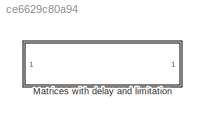
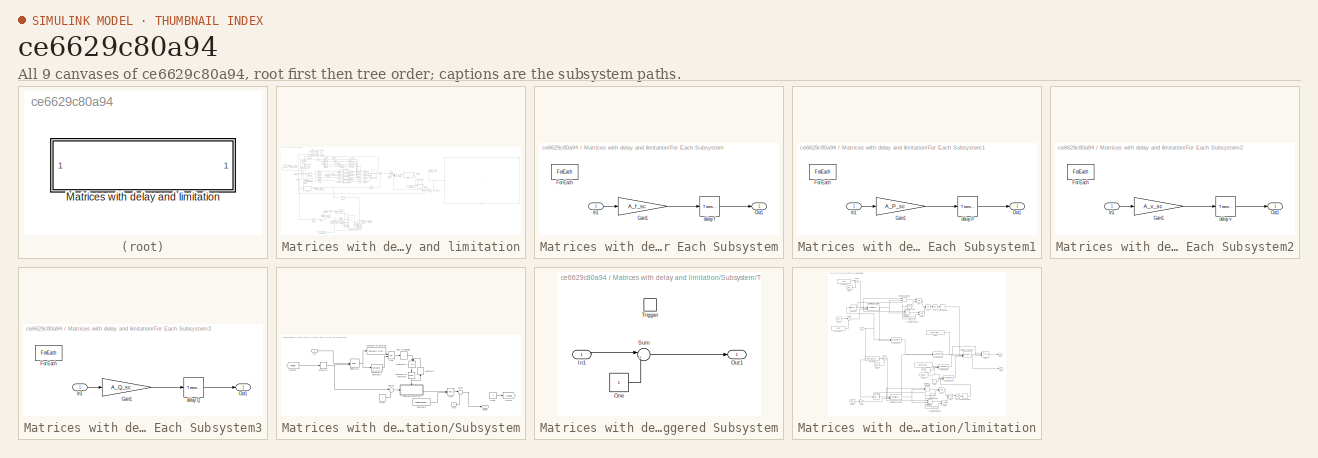
[diagram: thumbnail index - all 9 canvases of the model, root first then tree order]
MODEL slx_ce6629c80a94
KIND model
CONFIG AbsTol = auto
CONFIG EnableMultiTasking = off
CONFIG FixedStep = auto
CONFIG MaxStep = auto
CONFIG MinStep = auto
CONFIG RelTol = 1e-3
CONFIG SampleTimeConstraint = Unconstrained
CONFIG SolverName = VariableStepAuto
CONFIG StartTime = 0.0
CONFIG StopTime = 10.0
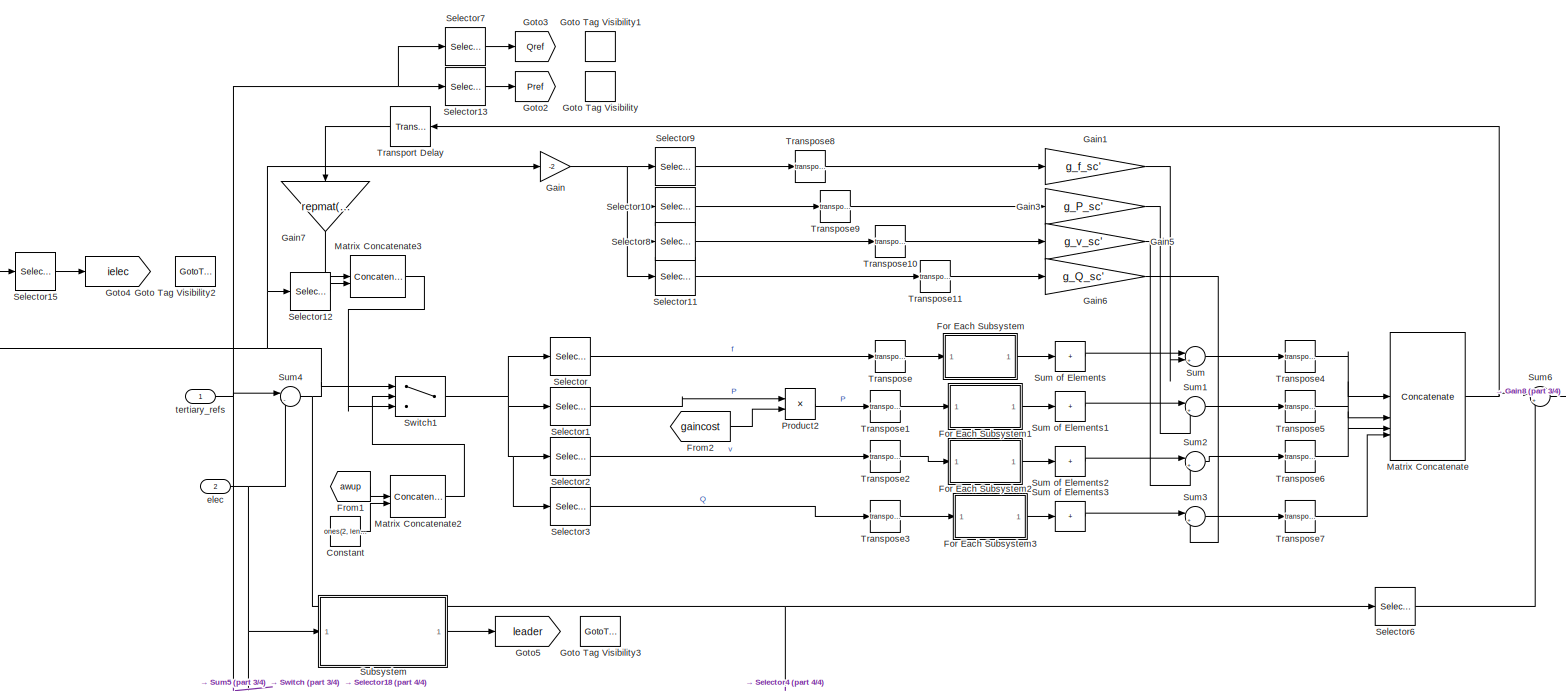
[diagram: Matrices with delay and limitation - part 1/4, top left region]
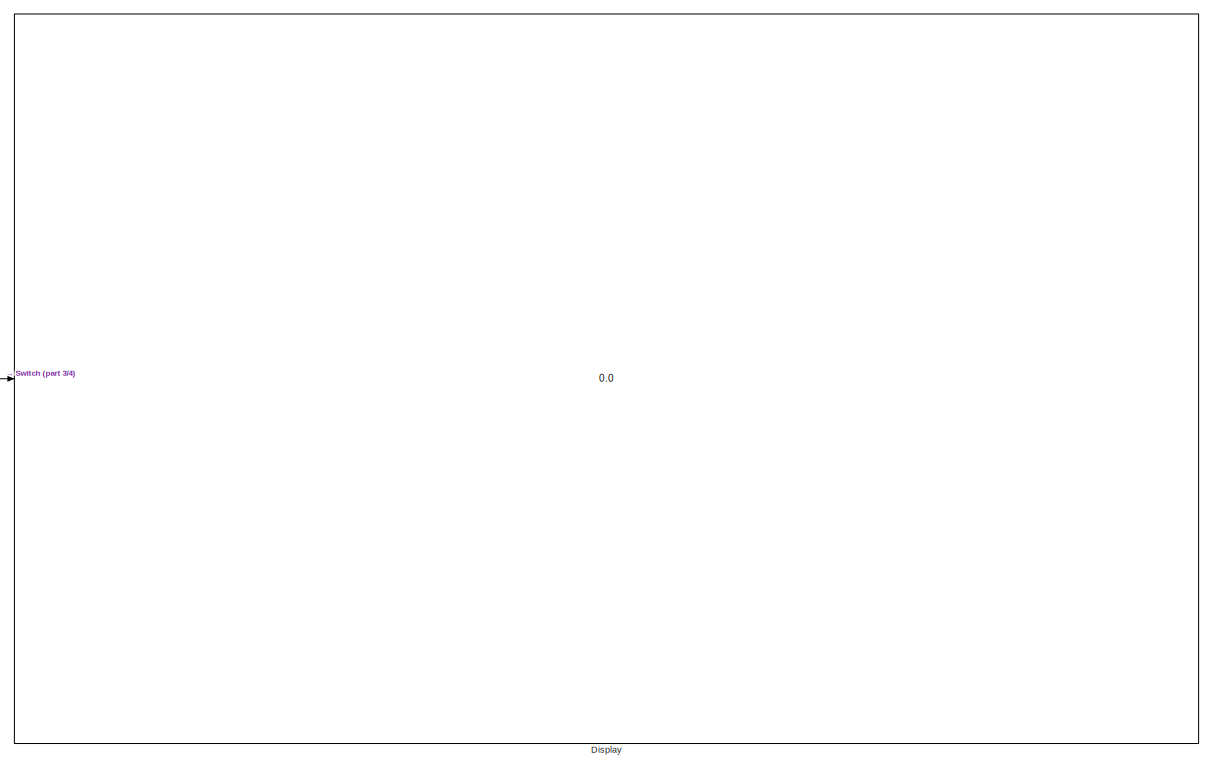
[diagram: Matrices with delay and limitation - part 2/4, middle right region]
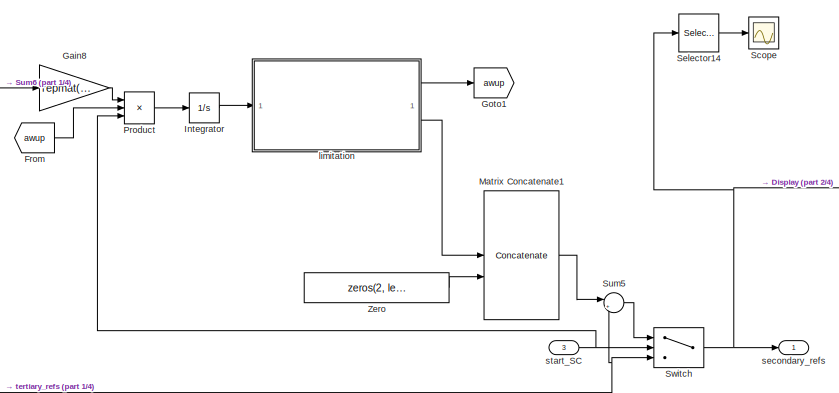
[diagram: Matrices with delay and limitation - part 3/4, central region]
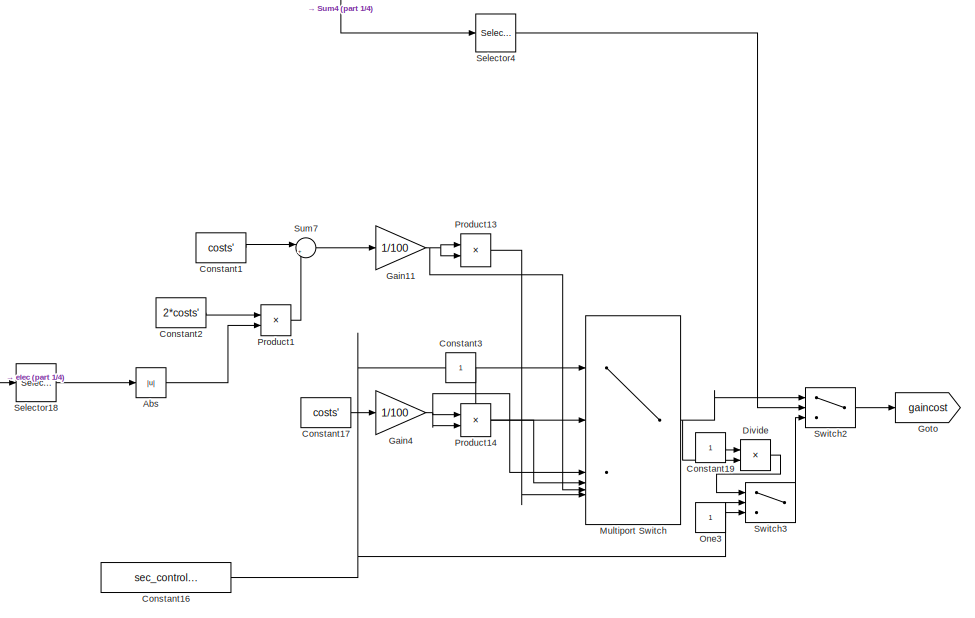
[diagram: Matrices with delay and limitation - part 4/4, bottom left region]
BLOCK [SubSystem] Matrices with delay and limitation
  NameLocation = top
  VariantControl = Matrices with delay and limitation
BLOCK [Abs] Matrices with delay and limitation/Abs
  SaturateOnIntegerOverflow = off
BLOCK [Constant] Matrices with delay and limitation/Constant
  Value = ones(2, length(buses_lf))
  VectorParams1D = off
BLOCK [Constant] Matrices with delay and limitation/Constant1
  Value = costs'
  VectorParams1D = off
BLOCK [Constant] Matrices with delay and limitation/Constant16
  Value = sec_control_structure
BLOCK [Constant] Matrices with delay and limitation/Constant17
  Value = costs'
  VectorParams1D = off
BLOCK [Constant] Matrices with delay and limitation/Constant19
  VectorParams1D = off
BLOCK [Constant] Matrices with delay and limitation/Constant2
  Value = 2*costs'
  VectorParams1D = off
BLOCK [Constant] Matrices with delay and limitation/Constant3
BLOCK [Display] Matrices with delay and limitation/Display
  Decimation = 1
BLOCK [Product] Matrices with delay and limitation/Divide
  Inputs = */
BLOCK [SubSystem] Matrices with delay and limitation/For Each Subsystem
  TreatAsAtomicUnit = on
BLOCK [ForEach] Matrices with delay and limitation/For Each Subsystem/For Each
  DisableCoverage = on
  IterateSubsysMaskParameter = on,on
  SubsysMaskParameterIterationDimension = 2,2
BLOCK [Gain] Matrices with delay and limitation/For Each Subsystem/Gain1
  Gain = A_f_sc
  Multiplication = Matrix(K*u)
BLOCK [Inport] Matrices with delay and limitation/For Each Subsystem/In1
  Partition = on
  PartitionDimension = 1
  PartitionOffset = 0
  PartitionWidth = 1
BLOCK [Outport] Matrices with delay and limitation/For Each Subsystem/Out1
  ConcatenationDimension = 2
BLOCK [TransportDelay] Matrices with delay and limitation/For Each Subsystem/delay f
  DelayTime = delayM
  PadeOrder = 3
BLOCK [SubSystem] Matrices with delay and limitation/For Each Subsystem1
  TreatAsAtomicUnit = on
BLOCK [ForEach] Matrices with delay and limitation/For Each Subsystem1/For Each
  DisableCoverage = on
  IterateSubsysMaskParameter = on,on
  SubsysMaskParameterIterationDimension = 2,2
BLOCK [Gain] Matrices with delay and limitation/For Each Subsystem1/Gain1
  Gain = A_P_sc
  Multiplication = Matrix(K*u)
BLOCK [Inport] Matrices with delay and limitation/For Each Subsystem1/In1
  Partition = on
  PartitionDimension = 1
  PartitionOffset = 0
  PartitionWidth = 1
BLOCK [Outport] Matrices with delay and limitation/For Each Subsystem1/Out1
  ConcatenationDimension = 2
BLOCK [TransportDelay] Matrices with delay and limitation/For Each Subsystem1/delay P
  DelayTime = delayM
  PadeOrder = 3
BLOCK [SubSystem] Matrices with delay and limitation/For Each Subsystem2
  TreatAsAtomicUnit = on
BLOCK [ForEach] Matrices with delay and limitation/For Each Subsystem2/For Each
  DisableCoverage = on
  IterateSubsysMaskParameter = on,on
  SubsysMaskParameterIterationDimension = 2,2
BLOCK [Gain] Matrices with delay and limitation/For Each Subsystem2/Gain1
  Gain = A_v_sc
  Multiplication = Matrix(K*u)
BLOCK [Inport] Matrices with delay and limitation/For Each Subsystem2/In1
  Partition = on
  PartitionDimension = 1
  PartitionOffset = 0
  PartitionWidth = 1
BLOCK [Outport] Matrices with delay and limitation/For Each Subsystem2/Out1
  ConcatenationDimension = 2
BLOCK [TransportDelay] Matrices with delay and limitation/For Each Subsystem2/delay v
  DelayTime = delayM
  PadeOrder = 3
BLOCK [SubSystem] Matrices with delay and limitation/For Each Subsystem3
  TreatAsAtomicUnit = on
BLOCK [ForEach] Matrices with delay and limitation/For Each Subsystem3/For Each
  DisableCoverage = on
  IterateSubsysMaskParameter = on,on
  SubsysMaskParameterIterationDimension = 2,2
BLOCK [Gain] Matrices with delay and limitation/For Each Subsystem3/Gain1
  Gain = A_Q_sc
  Multiplication = Matrix(K*u)
BLOCK [Inport] Matrices with delay and limitation/For Each Subsystem3/In1
  Partition = on
  PartitionDimension = 1
  PartitionOffset = 0
  PartitionWidth = 1
BLOCK [Outport] Matrices with delay and limitation/For Each Subsystem3/Out1
  ConcatenationDimension = 2
BLOCK [TransportDelay] Matrices with delay and limitation/For Each Subsystem3/delay Q
  DelayTime = delayM
  PadeOrder = 3
BLOCK [From] Matrices with delay and limitation/From
  GotoTag = awup
BLOCK [From] Matrices with delay and limitation/From1
  GotoTag = awup
BLOCK [From] Matrices with delay and limitation/From2
  GotoTag = gaincost
BLOCK [Gain] Matrices with delay and limitation/Gain
  Gain = -2
BLOCK [Gain] Matrices with delay and limitation/Gain1
  Gain = g_f_sc'
BLOCK [Gain] Matrices with delay and limitation/Gain11
  Gain = 1/100
BLOCK [Gain] Matrices with delay and limitation/Gain3
  Gain = g_P_sc'
BLOCK [Gain] Matrices with delay and limitation/Gain4
  Gain = 1/100
BLOCK [Gain] Matrices with delay and limitation/Gain5
  Gain = g_v_sc'
BLOCK [Gain] Matrices with delay and limitation/Gain6
  Gain = g_Q_sc'
BLOCK [Gain] Matrices with delay and limitation/Gain7
  Gain = repmat([1; 1.01; 1; 1], 1, 4)
  NameLocation = left
BLOCK [Gain] Matrices with delay and limitation/Gain8
  Gain = repmat([0 0.1 1 0.1]', 1, length(buses_lf))
BLOCK [Goto] Matrices with delay and limitation/Goto
  GotoTag = gaincost
BLOCK [GotoTagVisibility] Matrices with delay and limitation/Goto Tag Visibility
  GotoTag = Pref
BLOCK [GotoTagVisibility] Matrices with delay and limitation/Goto Tag Visibility1
  GotoTag = Qref
BLOCK [GotoTagVisibility] Matrices with delay and limitation/Goto Tag Visibility2
  GotoTag = ielec
BLOCK [GotoTagVisibility] Matrices with delay and limitation/Goto Tag Visibility3
  GotoTag = leader
BLOCK [Goto] Matrices with delay and limitation/Goto1
  GotoTag = awup
BLOCK [Goto] Matrices with delay and limitation/Goto2
  GotoTag = Pref
  TagVisibility = scoped
BLOCK [Goto] Matrices with delay and limitation/Goto3
  GotoTag = Qref
  TagVisibility = scoped
BLOCK [Goto] Matrices with delay and limitation/Goto4
  GotoTag = ielec
  TagVisibility = scoped
BLOCK [Goto] Matrices with delay and limitation/Goto5
  GotoTag = leader
  TagVisibility = scoped
BLOCK [Integrator] Matrices with delay and limitation/Integrator
BLOCK [Concatenate] Matrices with delay and limitation/Matrix Concatenate
  Mode = Multidimensional array
  NumInputs = 4
BLOCK [Concatenate] Matrices with delay and limitation/Matrix Concatenate1
  Mode = Multidimensional array
BLOCK [Concatenate] Matrices with delay and limitation/Matrix Concatenate2
  Mode = Multidimensional array
BLOCK [Concatenate] Matrices with delay and limitation/Matrix Concatenate3
  Mode = Multidimensional array
BLOCK [MultiPortSwitch] Matrices with delay and limitation/Multiport Switch
  InputSameDT = off
  Inputs = 5
  SaturateOnIntegerOverflow = off
BLOCK [Constant] Matrices with delay and limitation/One3
  OutDataTypeStr = Inherit: Inherit via back propagation
BLOCK [Product] Matrices with delay and limitation/Product
  Inputs = 3
BLOCK [Product] Matrices with delay and limitation/Product1
BLOCK [Product] Matrices with delay and limitation/Product13
BLOCK [Product] Matrices with delay and limitation/Product14
BLOCK [Product] Matrices with delay and limitation/Product2
BLOCK [Scope] Matrices with delay and limitation/Scope
  ActiveDisplayYMaximum = 0.00539
  ActiveDisplayYMinimum = 0.00424
  DataLoggingVariableName = ScopeData1
  Floating = off
  GraphicalSettings = {"GraphicalSettings":{"LegacySettings":true,"Style":{"AxesScalingProperties":{"AlignXAxis":"Center","AlignYAxis":"Center","AutoScaleXAxisLimits":true,"AxesScaling":"Manual","AxesScalingNumUpdates":10,"ScaleAxesLimitsAtStop":true,"XAxisDataRange":100,"YAxisDataRange":80},"Style":{"AxesColor":"[0 0 0]","ChannelNames":[""],"ColorOrder":"[1 0.909803921568627 0.392156862745098;0.149019607843137 0.54901...<+675ch>
  LayoutDimensionsString = [1 1]
  MultipleDisplayCache = [{"MaxYLimMag":0.00539,"MaxYLimReal":0.00539,"MinYLimMag":0.00424,"MinYLimReal":0.00424,"PlotAsMagnitudePhase":false,"ShowGrid":true,"ShowLegend":true,"Title":"%<SignalLabel>","YLabel":""}]
  NumInputPorts = 1
  ShowLegend = on
  WasSavedAsWebScope = on
  WindowPosition = [123 305 560 420]
BLOCK [Selector] Matrices with delay and limitation/Selector
  IndexOptions = Index vector (dialog),Select all
  Indices = 1,1
  InputPortWidth = 3
  NumberOfDimensions = 2
  OutputSizes = 1,1
BLOCK [Selector] Matrices with delay and limitation/Selector1
  IndexOptions = Index vector (dialog),Select all
  Indices = 2,1
  InputPortWidth = 3
  NumberOfDimensions = 2
  OutputSizes = 1,1
BLOCK [Selector] Matrices with delay and limitation/Selector10
  IndexOptions = Index vector (dialog),Select all
  Indices = 2,1
  InputPortWidth = 3
  NumberOfDimensions = 2
  OutputSizes = 1,1
BLOCK [Selector] Matrices with delay and limitation/Selector11
  IndexOptions = Index vector (dialog),Select all
  Indices = 4,1
  InputPortWidth = 3
  NumberOfDimensions = 2
  OutputSizes = 1,1
BLOCK [Selector] Matrices with delay and limitation/Selector12
  IndexOptions = Index vector (dialog),Select all
  Indices = 5:6,1
  InputPortWidth = 3
  NumberOfDimensions = 2
  OutputSizes = 1,1
BLOCK [Selector] Matrices with delay and limitation/Selector13
  IndexOptions = Index vector (dialog),Select all
  Indices = 2,1
  InputPortWidth = 3
  NumberOfDimensions = 2
  OutputSizes = 1,1
BLOCK [Selector] Matrices with delay and limitation/Selector14
  IndexOptions = Index vector (dialog),Index vector (dialog)
  Indices = 2,1
  InputPortWidth = 3
  NumberOfDimensions = 2
  OutputSizes = 1,1
BLOCK [Selector] Matrices with delay and limitation/Selector15
  IndexOptions = Index vector (dialog),Select all
  Indices = 1:4,1
  InputPortWidth = 3
  NumberOfDimensions = 2
  OutputSizes = 1,1
BLOCK [Selector] Matrices with delay and limitation/Selector18
  IndexOptions = Index vector (dialog),Select all
  Indices = 2,1
  InputPortWidth = 3
  NumberOfDimensions = 2
  OutputSizes = 1,1
BLOCK [Selector] Matrices with delay and limitation/Selector2
  IndexOptions = Index vector (dialog),Select all
  Indices = 3,1
  InputPortWidth = 3
  NumberOfDimensions = 2
  OutputSizes = 1,1
BLOCK [Selector] Matrices with delay and limitation/Selector3
  IndexOptions = Index vector (dialog),Select all
  Indices = 4,1
  InputPortWidth = 3
  NumberOfDimensions = 2
  OutputSizes = 1,1
BLOCK [Selector] Matrices with delay and limitation/Selector4
  IndexOptions = Index vector (dialog),Select all
  Indices = 2,1
  InputPortWidth = 3
  NumberOfDimensions = 2
  OutputSizes = 1,1
BLOCK [Selector] Matrices with delay and limitation/Selector6
  IndexOptions = Index vector (dialog),Select all
  Indices = 1:4,1
  InputPortWidth = 3
  NumberOfDimensions = 2
  OutputSizes = 1,1
BLOCK [Selector] Matrices with delay and limitation/Selector7
  IndexOptions = Index vector (dialog),Select all
  Indices = 4,1
  InputPortWidth = 3
  NumberOfDimensions = 2
  OutputSizes = 1,1
BLOCK [Selector] Matrices with delay and limitation/Selector8
  IndexOptions = Index vector (dialog),Select all
  Indices = 3,1
  InputPortWidth = 3
  NumberOfDimensions = 2
  OutputSizes = 1,1
BLOCK [Selector] Matrices with delay and limitation/Selector9
  IndexOptions = Index vector (dialog),Select all
  Indices = 1,1
  InputPortWidth = 3
  NumberOfDimensions = 2
  OutputSizes = 1,1
BLOCK [SubSystem] Matrices with delay and limitation/Subsystem
BLOCK [DataTypeConversion] Matrices with delay and limitation/Subsystem/Cast To Double1
  OutDataTypeStr = double
  RndMeth = Floor
  SaturateOnIntegerOverflow = off
BLOCK [Reference] Matrices with delay and limitation/Subsystem/Compare To Constant  REF=simulink/Logic and Bit
Operations/Compare
To Constant
  SourceBlock = simulink/Logic and Bit\nOperations/Compare\nTo Constant
  SourceType = Compare To Constant
BLOCK [Reference] Matrices with delay and limitation/Subsystem/Compare To Constant1  REF=simulink/Logic and Bit
Operations/Compare
To Constant
  SourceBlock = simulink/Logic and Bit\nOperations/Compare\nTo Constant
  SourceType = Compare To Constant
BLOCK [Reference] Matrices with delay and limitation/Subsystem/Compare To Constant2  REF=simulink/Logic and Bit
Operations/Compare
To Constant
  NameLocation = left
  SourceBlock = simulink/Logic and Bit\nOperations/Compare\nTo Constant
  SourceType = Compare To Constant
BLOCK [Constant] Matrices with delay and limitation/Subsystem/Constant4
  Value = length(buses_lf)
BLOCK [From] Matrices with delay and limitation/Subsystem/From23
  GotoTag = leader
BLOCK [Goto] Matrices with delay and limitation/Subsystem/Goto11
  GotoTag = leader
BLOCK [Inport] Matrices with delay and limitation/Subsystem/In1
BLOCK [Integrator] Matrices with delay and limitation/Subsystem/Integrator1
  ExternalReset = rising
  NameLocation = left
BLOCK [Memory] Matrices with delay and limitation/Subsystem/Memory1
  NameLocation = right
BLOCK [Memory] Matrices with delay and limitation/Subsystem/Memory2
  InitialCondition = 1
BLOCK [Math] Matrices with delay and limitation/Subsystem/Mod
  Operator = mod
BLOCK [Logic] Matrices with delay and limitation/Subsystem/OR1
  AllPortsSameDT = off
  IconShape = distinctive
  Operator = OR
  OutDataTypeStr = boolean
BLOCK [Constant] Matrices with delay and limitation/Subsystem/One
  OutDataTypeStr = Inherit: Inherit via back propagation
BLOCK [Constant] Matrices with delay and limitation/Subsystem/One1
  OutDataTypeStr = Inherit: Inherit via back propagation
BLOCK [Constant] Matrices with delay and limitation/Subsystem/One2
  OutDataTypeStr = Inherit: Inherit via back propagation
BLOCK [Selector] Matrices with delay and limitation/Subsystem/Selector16
  IndexOptions = Index vector (dialog),Index vector (port)
  Indices = 2,1
  InputPortWidth = length(buses_lf)
  NumberOfDimensions = 2
  OutputSizes = 1,1
BLOCK [Sum] Matrices with delay and limitation/Subsystem/Sum10
  Inputs = |+-
BLOCK [Sum] Matrices with delay and limitation/Subsystem/Sum9
  Inputs = |++
BLOCK [SubSystem] Matrices with delay and limitation/Subsystem/Triggered Subsystem
  TreatAsAtomicUnit = on
BLOCK [Inport] Matrices with delay and limitation/Subsystem/Triggered Subsystem/In1
BLOCK [Constant] Matrices with delay and limitation/Subsystem/Triggered Subsystem/One
  OutDataTypeStr = Inherit: Inherit via back propagation
BLOCK [Outport] Matrices with delay and limitation/Subsystem/Triggered Subsystem/Out1
BLOCK [Sum] Matrices with delay and limitation/Subsystem/Triggered Subsystem/Sum
  Inputs = |++
BLOCK [TriggerPort] Matrices with delay and limitation/Subsystem/Triggered Subsystem/Trigger
  StatesWhenEnabling = held
  VariantControl = (inherit)
BLOCK [Outport] Matrices with delay and limitation/Subsystem/leader
BLOCK [Sum] Matrices with delay and limitation/Sum
  Inputs = |++
BLOCK [Sum] Matrices with delay and limitation/Sum of Elements
  CollapseDim = 2
  CollapseMode = Specified dimension
  IconShape = rectangular
  Inputs = +
BLOCK [Sum] Matrices with delay and limitation/Sum of Elements1
  CollapseDim = 2
  CollapseMode = Specified dimension
  IconShape = rectangular
  Inputs = +
BLOCK [Sum] Matrices with delay and limitation/Sum of Elements2
  CollapseDim = 2
  CollapseMode = Specified dimension
  IconShape = rectangular
  Inputs = +
BLOCK [Sum] Matrices with delay and limitation/Sum of Elements3
  CollapseDim = 2
  CollapseMode = Specified dimension
  IconShape = rectangular
  Inputs = +
BLOCK [Sum] Matrices with delay and limitation/Sum1
  Inputs = |++
BLOCK [Sum] Matrices with delay and limitation/Sum2
  Inputs = |++
BLOCK [Sum] Matrices with delay and limitation/Sum3
  Inputs = |++
BLOCK [Sum] Matrices with delay and limitation/Sum4
  Inputs = |-+
BLOCK [Sum] Matrices with delay and limitation/Sum5
  Inputs = |++
BLOCK [Sum] Matrices with delay and limitation/Sum6
  Inputs = |+-
BLOCK [Sum] Matrices with delay and limitation/Sum7
  Inputs = |++
BLOCK [Switch] Matrices with delay and limitation/Switch
  Criteria = u2 > Threshold
  InputSameDT = off
  SaturateOnIntegerOverflow = off
BLOCK [Switch] Matrices with delay and limitation/Switch1
  Criteria = u2 > Threshold
  InputSameDT = off
  SaturateOnIntegerOverflow = off
BLOCK [Switch] Matrices with delay and limitation/Switch2
  Criteria = u2 > Threshold
  InputSameDT = off
  SaturateOnIntegerOverflow = off
BLOCK [Switch] Matrices with delay and limitation/Switch3
  Criteria = u2 > Threshold
  InputSameDT = off
  SaturateOnIntegerOverflow = off
  Threshold = 1
BLOCK [TransportDelay] Matrices with delay and limitation/Transport Delay
  DelayTime = 1e-9
BLOCK [Math] Matrices with delay and limitation/Transpose
  Operator = transpose
BLOCK [Math] Matrices with delay and limitation/Transpose1
  Operator = transpose
BLOCK [Math] Matrices with delay and limitation/Transpose10
  Operator = transpose
BLOCK [Math] Matrices with delay and limitation/Transpose11
  Operator = transpose
BLOCK [Math] Matrices with delay and limitation/Transpose2
  Operator = transpose
BLOCK [Math] Matrices with delay and limitation/Transpose3
  Operator = transpose
BLOCK [Math] Matrices with delay and limitation/Transpose4
  Operator = transpose
BLOCK [Math] Matrices with delay and limitation/Transpose5
  Operator = transpose
BLOCK [Math] Matrices with delay and limitation/Transpose6
  Operator = transpose
BLOCK [Math] Matrices with delay and limitation/Transpose7
  Operator = transpose
BLOCK [Math] Matrices with delay and limitation/Transpose8
  Operator = transpose
BLOCK [Math] Matrices with delay and limitation/Transpose9
  Operator = transpose
BLOCK [Constant] Matrices with delay and limitation/Zero
  OutDataTypeStr = Inherit: Inherit via back propagation
  Value = zeros(2, length(buses_lf))
  VectorParams1D = off
BLOCK [Inport] Matrices with delay and limitation/elec
  Port = 2
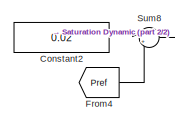
[diagram: Matrices with delay and limitation/limitation - part 1/2, top left region]
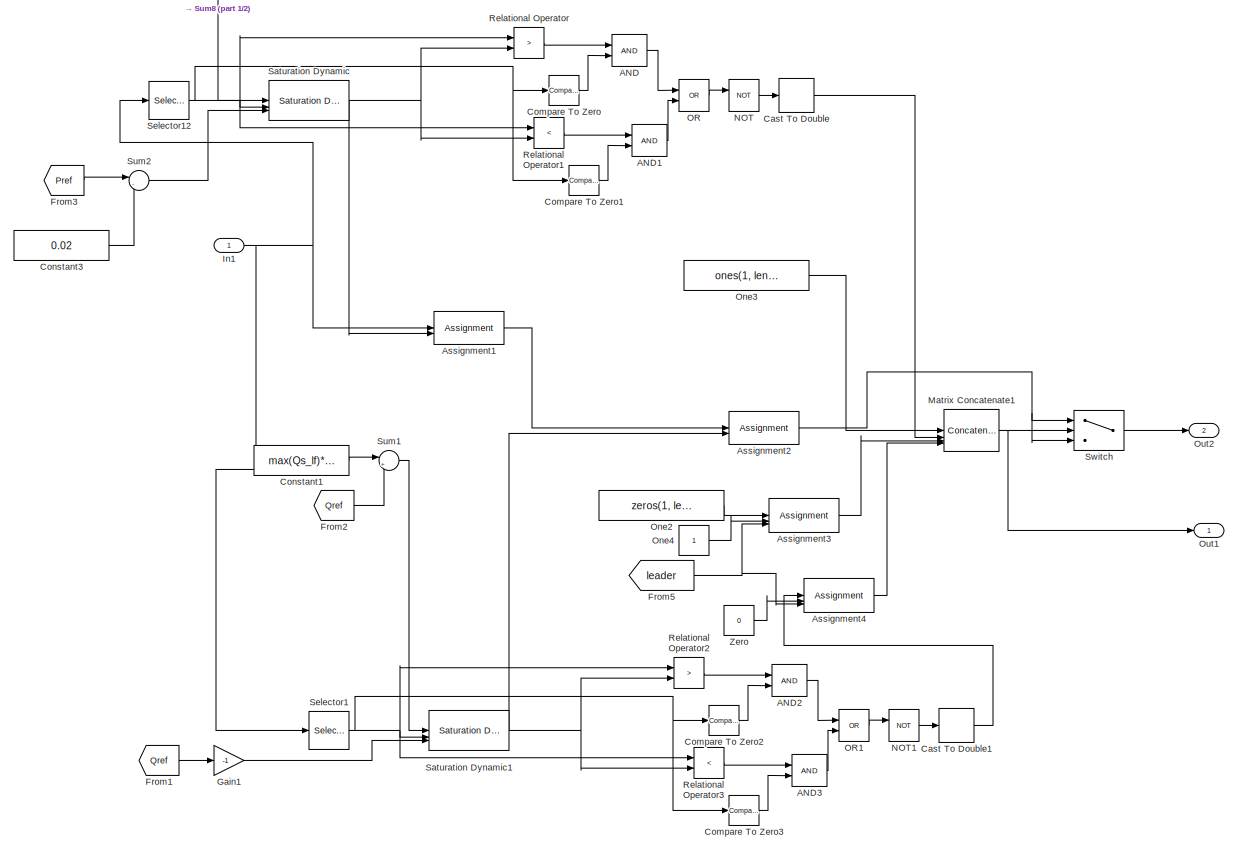
[diagram: Matrices with delay and limitation/limitation - part 2/2, most of the canvas]
BLOCK [SubSystem] Matrices with delay and limitation/limitation
BLOCK [Logic] Matrices with delay and limitation/limitation/AND
  AllPortsSameDT = off
  IconShape = distinctive
  OutDataTypeStr = boolean
BLOCK [Logic] Matrices with delay and limitation/limitation/AND1
  AllPortsSameDT = off
  IconShape = distinctive
  OutDataTypeStr = boolean
BLOCK [Logic] Matrices with delay and limitation/limitation/AND2
  AllPortsSameDT = off
  IconShape = distinctive
  OutDataTypeStr = boolean
BLOCK [Logic] Matrices with delay and limitation/limitation/AND3
  AllPortsSameDT = off
  IconShape = distinctive
  OutDataTypeStr = boolean
BLOCK [Assignment] Matrices with delay and limitation/limitation/Assignment1
  DiagnosticForDimensions = Warning
  IndexOptions = Index vector (dialog),Assign all
  Indices = 2,1
  NumberOfDimensions = 2
  OutputSizes = 1,1
BLOCK [Assignment] Matrices with delay and limitation/limitation/Assignment2
  DiagnosticForDimensions = Warning
  IndexOptions = Index vector (dialog),Assign all
  Indices = 4,1
  NumberOfDimensions = 2
  OutputSizes = 1,1
BLOCK [Assignment] Matrices with delay and limitation/limitation/Assignment3
  DiagnosticForDimensions = Warning
  IndexOptions = Index vector (port)
  Indices = 4
  OutputSizes = 1
BLOCK [Assignment] Matrices with delay and limitation/limitation/Assignment4
  DiagnosticForDimensions = Warning
  IndexOptions = Index vector (port)
  Indices = 4
  OutputSizes = 1
BLOCK [DataTypeConversion] Matrices with delay and limitation/limitation/Cast To Double
  OutDataTypeStr = double
  RndMeth = Floor
  SaturateOnIntegerOverflow = off
BLOCK [DataTypeConversion] Matrices with delay and limitation/limitation/Cast To Double1
  OutDataTypeStr = double
  RndMeth = Floor
  SaturateOnIntegerOverflow = off
BLOCK [Reference] Matrices with delay and limitation/limitation/Compare To Zero  REF=simulink/Logic and Bit
Operations/Compare
To Zero
  SourceBlock = simulink/Logic and Bit\nOperations/Compare\nTo Zero
  SourceType = Compare To Zero
BLOCK [Reference] Matrices with delay and limitation/limitation/Compare To Zero1  REF=simulink/Logic and Bit
Operations/Compare
To Zero
  SourceBlock = simulink/Logic and Bit\nOperations/Compare\nTo Zero
  SourceType = Compare To Zero
BLOCK [Reference] Matrices with delay and limitation/limitation/Compare To Zero2  REF=simulink/Logic and Bit
Operations/Compare
To Zero
  SourceBlock = simulink/Logic and Bit\nOperations/Compare\nTo Zero
  SourceType = Compare To Zero
BLOCK [Reference] Matrices with delay and limitation/limitation/Compare To Zero3  REF=simulink/Logic and Bit
Operations/Compare
To Zero
  SourceBlock = simulink/Logic and Bit\nOperations/Compare\nTo Zero
  SourceType = Compare To Zero
BLOCK [Constant] Matrices with delay and limitation/limitation/Constant1
  Value = max(Qs_lf)*20
  VectorParams1D = off
BLOCK [Constant] Matrices with delay and limitation/limitation/Constant2
  Value = 0.02
  VectorParams1D = off
BLOCK [Constant] Matrices with delay and limitation/limitation/Constant3
  Value = 0.02
  VectorParams1D = off
BLOCK [From] Matrices with delay and limitation/limitation/From1
  GotoTag = Qref
  TagVisibility = scoped
BLOCK [From] Matrices with delay and limitation/limitation/From2
  GotoTag = Qref
  TagVisibility = scoped
BLOCK [From] Matrices with delay and limitation/limitation/From3
  GotoTag = Pref
  TagVisibility = scoped
BLOCK [From] Matrices with delay and limitation/limitation/From4
  GotoTag = Pref
  TagVisibility = scoped
BLOCK [From] Matrices with delay and limitation/limitation/From5
  GotoTag = leader
  TagVisibility = scoped
BLOCK [Gain] Matrices with delay and limitation/limitation/Gain1
  Gain = -1
BLOCK [Inport] Matrices with delay and limitation/limitation/In1
BLOCK [Concatenate] Matrices with delay and limitation/limitation/Matrix Concatenate1
  Mode = Multidimensional array
  NumInputs = 4
BLOCK [Logic] Matrices with delay and limitation/limitation/NOT
  AllPortsSameDT = off
  IconShape = distinctive
  Operator = NOT
  OutDataTypeStr = boolean
BLOCK [Logic] Matrices with delay and limitation/limitation/NOT1
  AllPortsSameDT = off
  IconShape = distinctive
  Operator = NOT
  OutDataTypeStr = boolean
BLOCK [Logic] Matrices with delay and limitation/limitation/OR
  AllPortsSameDT = off
  IconShape = distinctive
  Operator = OR
  OutDataTypeStr = boolean
BLOCK [Logic] Matrices with delay and limitation/limitation/OR1
  AllPortsSameDT = off
  IconShape = distinctive
  Operator = OR
  OutDataTypeStr = boolean
BLOCK [Constant] Matrices with delay and limitation/limitation/One2
  OutDataTypeStr = Inherit: Inherit via back propagation
  Value = zeros(1, length(buses_lf))
  VectorParams1D = off
BLOCK [Constant] Matrices with delay and limitation/limitation/One3
  OutDataTypeStr = Inherit: Inherit via back propagation
  Value = ones(1, length(buses_lf))
  VectorParams1D = off
BLOCK [Constant] Matrices with delay and limitation/limitation/One4
  OutDataTypeStr = Inherit: Inherit via back propagation
BLOCK [Outport] Matrices with delay and limitation/limitation/Out1
BLOCK [Outport] Matrices with delay and limitation/limitation/Out2
  Port = 2
BLOCK [RelationalOperator] Matrices with delay and limitation/limitation/Relational Operator
  InputSameDT = off
  Operator = >
  OutDataTypeStr = boolean
  RndMeth = Simplest
BLOCK [RelationalOperator] Matrices with delay and limitation/limitation/Relational Operator1
  InputSameDT = off
  Operator = <
  OutDataTypeStr = boolean
  RndMeth = Simplest
BLOCK [RelationalOperator] Matrices with delay and limitation/limitation/Relational Operator2
  InputSameDT = off
  Operator = >
  OutDataTypeStr = boolean
  RndMeth = Simplest
BLOCK [RelationalOperator] Matrices with delay and limitation/limitation/Relational Operator3
  InputSameDT = off
  Operator = <
  OutDataTypeStr = boolean
  RndMeth = Simplest
BLOCK [Reference] Matrices with delay and limitation/limitation/Saturation Dynamic  REF=simulink/Discontinuities/Saturation
Dynamic
  SourceBlock = simulink/Discontinuities/Saturation\nDynamic
  SourceType = Saturation Dynamic
BLOCK [Reference] Matrices with delay and limitation/limitation/Saturation Dynamic1  REF=simulink/Discontinuities/Saturation
Dynamic
  SourceBlock = simulink/Discontinuities/Saturation\nDynamic
  SourceType = Saturation Dynamic
BLOCK [Selector] Matrices with delay and limitation/limitation/Selector1
  IndexOptions = Index vector (dialog),Select all
  Indices = 4,1
  InputPortWidth = 3
  NumberOfDimensions = 2
  OutputSizes = 1,1
BLOCK [Selector] Matrices with delay and limitation/limitation/Selector12
  IndexOptions = Index vector (dialog),Select all
  Indices = 2,1
  InputPortWidth = 3
  NumberOfDimensions = 2
  OutputSizes = 1,1
BLOCK [Sum] Matrices with delay and limitation/limitation/Sum1
  Inputs = |+-
BLOCK [Sum] Matrices with delay and limitation/limitation/Sum2
  Inputs = |--
BLOCK [Sum] Matrices with delay and limitation/limitation/Sum8
  Inputs = |+-
BLOCK [Switch] Matrices with delay and limitation/limitation/Switch
  Criteria = u2 > Threshold
  InputSameDT = off
  SaturateOnIntegerOverflow = off
BLOCK [Constant] Matrices with delay and limitation/limitation/Zero
  OutDataTypeStr = Inherit: Inherit via back propagation
  Value = 0
BLOCK [Outport] Matrices with delay and limitation/secondary_refs
BLOCK [Inport] Matrices with delay and limitation/start_SC
  Port = 3
BLOCK [Inport] Matrices with delay and limitation/tertiary_refs
LINE Matrices with delay and limitation/Abs:1 -> Matrices with delay and limitation/Product1:2
NET Matrices with delay and limitation/Constant16:1 -> Matrices with delay and limitation/Multiport Switch:1, Matrices with delay and limitation/Switch3:2
LINE Matrices with delay and limitation/Constant17:1 -> Matrices with delay and limitation/Gain4:1
LINE Matrices with delay and limitation/Constant19:1 -> Matrices with delay and limitation/Divide:1
LINE Matrices with delay and limitation/Constant1:1 -> Matrices with delay and limitation/Sum7:1
LINE Matrices with delay and limitation/Constant2:1 -> Matrices with delay and limitation/Product1:1
LINE Matrices with delay and limitation/Constant3:1 -> Matrices with delay and limitation/Multiport Switch:2
LINE Matrices with delay and limitation/Constant:1 -> Matrices with delay and limitation/Matrix Concatenate2:2
LINE Matrices with delay and limitation/Divide:1 -> Matrices with delay and limitation/Switch3:1
LINE Matrices with delay and limitation/For Each Subsystem/Gain1:1 -> Matrices with delay and limitation/For Each Subsystem/delay f:1
LINE Matrices with delay and limitation/For Each Subsystem/In1:1 -> Matrices with delay and limitation/For Each Subsystem/Gain1:1
LINE Matrices with delay and limitation/For Each Subsystem/delay f:1 -> Matrices with delay and limitation/For Each Subsystem/Out1:1
LINE Matrices with delay and limitation/For Each Subsystem1/Gain1:1 -> Matrices with delay and limitation/For Each Subsystem1/delay P:1
LINE Matrices with delay and limitation/For Each Subsystem1/In1:1 -> Matrices with delay and limitation/For Each Subsystem1/Gain1:1
LINE Matrices with delay and limitation/For Each Subsystem1/delay P:1 -> Matrices with delay and limitation/For Each Subsystem1/Out1:1
LINE Matrices with delay and limitation/For Each Subsystem1:1 -> Matrices with delay and limitation/Sum of Elements1:1
LINE Matrices with delay and limitation/For Each Subsystem2/Gain1:1 -> Matrices with delay and limitation/For Each Subsystem2/delay v:1
LINE Matrices with delay and limitation/For Each Subsystem2/In1:1 -> Matrices with delay and limitation/For Each Subsystem2/Gain1:1
LINE Matrices with delay and limitation/For Each Subsystem2/delay v:1 -> Matrices with delay and limitation/For Each Subsystem2/Out1:1
LINE Matrices with delay and limitation/For Each Subsystem2:1 -> Matrices with delay and limitation/Sum of Elements2:1
LINE Matrices with delay and limitation/For Each Subsystem3/Gain1:1 -> Matrices with delay and limitation/For Each Subsystem3/delay Q:1
LINE Matrices with delay and limitation/For Each Subsystem3/In1:1 -> Matrices with delay and limitation/For Each Subsystem3/Gain1:1
LINE Matrices with delay and limitation/For Each Subsystem3/delay Q:1 -> Matrices with delay and limitation/For Each Subsystem3/Out1:1
LINE Matrices with delay and limitation/For Each Subsystem3:1 -> Matrices with delay and limitation/Sum of Elements3:1
LINE Matrices with delay and limitation/For Each Subsystem:1 -> Matrices with delay and limitation/Sum of Elements:1
LINE Matrices with delay and limitation/From1:1 -> Matrices with delay and limitation/Matrix Concatenate2:1
LINE Matrices with delay and limitation/From2:1 -> Matrices with delay and limitation/Product2:2
LINE Matrices with delay and limitation/From:1 -> Matrices with delay and limitation/Product:2
NET Matrices with delay and limitation/Gain11:1 -> Matrices with delay and limitation/Multiport Switch:5, Matrices with delay and limitation/Product13:1, Matrices with delay and limitation/Product13:2
LINE Matrices with delay and limitation/Gain1:1 -> Matrices with delay and limitation/Sum:2
LINE Matrices with delay and limitation/Gain3:1 -> Matrices with delay and limitation/Sum1:2
NET Matrices with delay and limitation/Gain4:1 -> Matrices with delay and limitation/Multiport Switch:3, Matrices with delay and limitation/Product14:1, Matrices with delay and limitation/Product14:2
LINE Matrices with delay and limitation/Gain5:1 -> Matrices with delay and limitation/Sum2:2
LINE Matrices with delay and limitation/Gain6:1 -> Matrices with delay and limitation/Sum3:2
LINE Matrices with delay and limitation/Gain7:1 -> Matrices with delay and limitation/Matrix Concatenate3:1
LINE Matrices with delay and limitation/Gain8:1 -> Matrices with delay and limitation/Product:1
NET Matrices with delay and limitation/Gain:1 -> Matrices with delay and limitation/Selector10:1, Matrices with delay and limitation/Selector11:1, Matrices with delay and limitation/Selector8:1, Matrices with delay and limitation/Selector9:1
LINE Matrices with delay and limitation/Integrator:1 -> Matrices with delay and limitation/limitation:1
LINE Matrices with delay and limitation/Matrix Concatenate1:1 -> Matrices with delay and limitation/Sum5:1
LINE Matrices with delay and limitation/Matrix Concatenate2:1 -> Matrices with delay and limitation/Switch1:2
LINE Matrices with delay and limitation/Matrix Concatenate3:1 -> Matrices with delay and limitation/Switch1:3
NET Matrices with delay and limitation/Matrix Concatenate:1 -> Matrices with delay and limitation/Sum6:1, Matrices with delay and limitation/Transport Delay:1
NET Matrices with delay and limitation/Multiport Switch:1 -> Matrices with delay and limitation/Divide:2, Matrices with delay and limitation/Switch2:1
LINE Matrices with delay and limitation/One3:1 -> Matrices with delay and limitation/Switch3:3
LINE Matrices with delay and limitation/Product13:1 -> Matrices with delay and limitation/Multiport Switch:6
LINE Matrices with delay and limitation/Product14:1 -> Matrices with delay and limitation/Multiport Switch:4
LINE Matrices with delay and limitation/Product1:1 -> Matrices with delay and limitation/Sum7:2
LINE Matrices with delay and limitation/Product2:1 -> Matrices with delay and limitation/Transpose1:1
LINE Matrices with delay and limitation/Product:1 -> Matrices with delay and limitation/Integrator:1
LINE Matrices with delay and limitation/Selector10:1 -> Matrices with delay and limitation/Transpose9:1
LINE Matrices with delay and limitation/Selector11:1 -> Matrices with delay and limitation/Transpose11:1
LINE Matrices with delay and limitation/Selector12:1 -> Matrices with delay and limitation/Matrix Concatenate3:2
LINE Matrices with delay and limitation/Selector13:1 -> Matrices with delay and limitation/Goto2:1
LINE Matrices with delay and limitation/Selector14:1 -> Matrices with delay and limitation/Scope:1
LINE Matrices with delay and limitation/Selector15:1 -> Matrices with delay and limitation/Goto4:1
LINE Matrices with delay and limitation/Selector18:1 -> Matrices with delay and limitation/Abs:1
LINE Matrices with delay and limitation/Selector1:1 -> Matrices with delay and limitation/Product2:1
LINE Matrices with delay and limitation/Selector2:1 -> Matrices with delay and limitation/Transpose2:1
LINE Matrices with delay and limitation/Selector3:1 -> Matrices with delay and limitation/Transpose3:1
LINE Matrices with delay and limitation/Selector4:1 -> Matrices with delay and limitation/Switch2:2
LINE Matrices with delay and limitation/Selector6:1 -> Matrices with delay and limitation/Sum6:2
LINE Matrices with delay and limitation/Selector7:1 -> Matrices with delay and limitation/Goto3:1
LINE Matrices with delay and limitation/Selector8:1 -> Matrices with delay and limitation/Transpose10:1
LINE Matrices with delay and limitation/Selector9:1 -> Matrices with delay and limitation/Transpose8:1
LINE Matrices with delay and limitation/Selector:1 -> Matrices with delay and limitation/Transpose:1
LINE Matrices with delay and limitation/Subsystem/Cast To Double1:1 -> Matrices with delay and limitation/Subsystem/Integrator1:1
LINE Matrices with delay and limitation/Subsystem/Compare To Constant1:1 -> Matrices with delay and limitation/Subsystem/OR1:2
NET Matrices with delay and limitation/Subsystem/Compare To Constant2:1 -> Matrices with delay and limitation/Subsystem/Memory1:1, Matrices with delay and limitation/Subsystem/Triggered Subsystem:trigger
LINE Matrices with delay and limitation/Subsystem/Compare To Constant:1 -> Matrices with delay and limitation/Subsystem/OR1:1
LINE Matrices with delay and limitation/Subsystem/Constant4:1 -> Matrices with delay and limitation/Subsystem/Mod:2
LINE Matrices with delay and limitation/Subsystem/From23:1 -> Matrices with delay and limitation/Subsystem/Memory2:1
LINE Matrices with delay and limitation/Subsystem/In1:1 -> Matrices with delay and limitation/Subsystem/Selector16:1
LINE Matrices with delay and limitation/Subsystem/Integrator1:1 -> Matrices with delay and limitation/Subsystem/Compare To Constant2:1
LINE Matrices with delay and limitation/Subsystem/Memory1:1 -> Matrices with delay and limitation/Subsystem/Integrator1:2
NET Matrices with delay and limitation/Subsystem/Memory2:1 -> Matrices with delay and limitation/Subsystem/Selector16:2, Matrices with delay and limitation/Subsystem/Sum10:1
LINE Matrices with delay and limitation/Subsystem/Mod:1 -> Matrices with delay and limitation/Subsystem/Sum9:1
LINE Matrices with delay and limitation/Subsystem/OR1:1 -> Matrices with delay and limitation/Subsystem/Cast To Double1:1
LINE Matrices with delay and limitation/Subsystem/One1:1 -> Matrices with delay and limitation/Subsystem/Sum10:2
LINE Matrices with delay and limitation/Subsystem/One2:1 -> Matrices with delay and limitation/Subsystem/Goto11:1
LINE Matrices with delay and limitation/Subsystem/One:1 -> Matrices with delay and limitation/Subsystem/Sum9:2
NET Matrices with delay and limitation/Subsystem/Selector16:1 -> Matrices with delay and limitation/Subsystem/Compare To Constant1:1, Matrices with delay and limitation/Subsystem/Compare To Constant:1
LINE Matrices with delay and limitation/Subsystem/Sum10:1 -> Matrices with delay and limitation/Subsystem/Triggered Subsystem:1
LINE Matrices with delay and limitation/Subsystem/Sum9:1 -> Matrices with delay and limitation/Subsystem/leader:1
LINE Matrices with delay and limitation/Subsystem/Triggered Subsystem/In1:1 -> Matrices with delay and limitation/Subsystem/Triggered Subsystem/Sum:1
LINE Matrices with delay and limitation/Subsystem/Triggered Subsystem/One:1 -> Matrices with delay and limitation/Subsystem/Triggered Subsystem/Sum:2
LINE Matrices with delay and limitation/Subsystem/Triggered Subsystem/Sum:1 -> Matrices with delay and limitation/Subsystem/Triggered Subsystem/Out1:1
LINE Matrices with delay and limitation/Subsystem/Triggered Subsystem:1 -> Matrices with delay and limitation/Subsystem/Mod:1
LINE Matrices with delay and limitation/Subsystem:1 -> Matrices with delay and limitation/Goto5:1
LINE Matrices with delay and limitation/Sum of Elements1:1 -> Matrices with delay and limitation/Sum1:1
LINE Matrices with delay and limitation/Sum of Elements2:1 -> Matrices with delay and limitation/Sum2:1
LINE Matrices with delay and limitation/Sum of Elements3:1 -> Matrices with delay and limitation/Sum3:1
LINE Matrices with delay and limitation/Sum of Elements:1 -> Matrices with delay and limitation/Sum:1
LINE Matrices with delay and limitation/Sum1:1 -> Matrices with delay and limitation/Transpose5:1
LINE Matrices with delay and limitation/Sum2:1 -> Matrices with delay and limitation/Transpose6:1
LINE Matrices with delay and limitation/Sum3:1 -> Matrices with delay and limitation/Transpose7:1
NET Matrices with delay and limitation/Sum4:1 -> Matrices with delay and limitation/Gain:1, Matrices with delay and limitation/Selector12:1, Matrices with delay and limitation/Selector15:1, Matrices with delay and limitation/Selector4:1, Matrices with delay and limitation/Selector6:1, Matrices with delay and limitation/Switch1:1
LINE Matrices with delay and limitation/Sum5:1 -> Matrices with delay and limitation/Switch:1
LINE Matrices with delay and limitation/Sum6:1 -> Matrices with delay and limitation/Gain8:1
LINE Matrices with delay and limitation/Sum7:1 -> Matrices with delay and limitation/Gain11:1
LINE Matrices with delay and limitation/Sum:1 -> Matrices with delay and limitation/Transpose4:1
NET Matrices with delay and limitation/Switch1:1 -> Matrices with delay and limitation/Selector1:1, Matrices with delay and limitation/Selector2:1, Matrices with delay and limitation/Selector3:1, Matrices with delay and limitation/Selector:1
LINE Matrices with delay and limitation/Switch2:1 -> Matrices with delay and limitation/Goto:1
LINE Matrices with delay and limitation/Switch3:1 -> Matrices with delay and limitation/Switch2:3
NET Matrices with delay and limitation/Switch:1 -> Matrices with delay and limitation/Display:1, Matrices with delay and limitation/Selector14:1, Matrices with delay and limitation/secondary_refs:1
LINE Matrices with delay and limitation/Transport Delay:1 -> Matrices with delay and limitation/Gain7:1
LINE Matrices with delay and limitation/Transpose10:1 -> Matrices with delay and limitation/Gain5:1
LINE Matrices with delay and limitation/Transpose11:1 -> Matrices with delay and limitation/Gain6:1
LINE Matrices with delay and limitation/Transpose1:1 -> Matrices with delay and limitation/For Each Subsystem1:1
LINE Matrices with delay and limitation/Transpose2:1 -> Matrices with delay and limitation/For Each Subsystem2:1
LINE Matrices with delay and limitation/Transpose3:1 -> Matrices with delay and limitation/For Each Subsystem3:1
LINE Matrices with delay and limitation/Transpose4:1 -> Matrices with delay and limitation/Matrix Concatenate:1
LINE Matrices with delay and limitation/Transpose5:1 -> Matrices with delay and limitation/Matrix Concatenate:2
LINE Matrices with delay and limitation/Transpose6:1 -> Matrices with delay and limitation/Matrix Concatenate:3
LINE Matrices with delay and limitation/Transpose7:1 -> Matrices with delay and limitation/Matrix Concatenate:4
LINE Matrices with delay and limitation/Transpose8:1 -> Matrices with delay and limitation/Gain1:1
LINE Matrices with delay and limitation/Transpose9:1 -> Matrices with delay and limitation/Gain3:1
LINE Matrices with delay and limitation/Transpose:1 -> Matrices with delay and limitation/For Each Subsystem:1
LINE Matrices with delay and limitation/Zero:1 -> Matrices with delay and limitation/Matrix Concatenate1:2
NET Matrices with delay and limitation/elec:1 -> Matrices with delay and limitation/Selector18:1, Matrices with delay and limitation/Subsystem:1, Matrices with delay and limitation/Sum4:2
LINE Matrices with delay and limitation/limitation/AND1:1 -> Matrices with delay and limitation/limitation/OR:2
LINE Matrices with delay and limitation/limitation/AND2:1 -> Matrices with delay and limitation/limitation/OR1:1
LINE Matrices with delay and limitation/limitation/AND3:1 -> Matrices with delay and limitation/limitation/OR1:2
LINE Matrices with delay and limitation/limitation/AND:1 -> Matrices with delay and limitation/limitation/OR:1
LINE Matrices with delay and limitation/limitation/Assignment1:1 -> Matrices with delay and limitation/limitation/Assignment2:1
NET Matrices with delay and limitation/limitation/Assignment2:1 -> Matrices with delay and limitation/limitation/Switch:1, Matrices with delay and limitation/limitation/Switch:3
LINE Matrices with delay and limitation/limitation/Assignment3:1 -> Matrices with delay and limitation/limitation/Matrix Concatenate1:3
LINE Matrices with delay and limitation/limitation/Assignment4:1 -> Matrices with delay and limitation/limitation/Matrix Concatenate1:4
LINE Matrices with delay and limitation/limitation/Cast To Double1:1 -> Matrices with delay and limitation/limitation/Assignment4:1
LINE Matrices with delay and limitation/limitation/Cast To Double:1 -> Matrices with delay and limitation/limitation/Matrix Concatenate1:2
LINE Matrices with delay and limitation/limitation/Compare To Zero1:1 -> Matrices with delay and limitation/limitation/AND1:2
LINE Matrices with delay and limitation/limitation/Compare To Zero2:1 -> Matrices with delay and limitation/limitation/AND2:2
LINE Matrices with delay and limitation/limitation/Compare To Zero3:1 -> Matrices with delay and limitation/limitation/AND3:2
LINE Matrices with delay and limitation/limitation/Compare To Zero:1 -> Matrices with delay and limitation/limitation/AND:2
LINE Matrices with delay and limitation/limitation/Constant1:1 -> Matrices with delay and limitation/limitation/Sum1:1
LINE Matrices with delay and limitation/limitation/Constant2:1 -> Matrices with delay and limitation/limitation/Sum8:1
LINE Matrices with delay and limitation/limitation/Constant3:1 -> Matrices with delay and limitation/limitation/Sum2:2
LINE Matrices with delay and limitation/limitation/From1:1 -> Matrices with delay and limitation/limitation/Gain1:1
LINE Matrices with delay and limitation/limitation/From2:1 -> Matrices with delay and limitation/limitation/Sum1:2
LINE Matrices with delay and limitation/limitation/From3:1 -> Matrices with delay and limitation/limitation/Sum2:1
LINE Matrices with delay and limitation/limitation/From4:1 -> Matrices with delay and limitation/limitation/Sum8:2
NET Matrices with delay and limitation/limitation/From5:1 -> Matrices with delay and limitation/limitation/Assignment3:3, Matrices with delay and limitation/limitation/Assignment4:3
LINE Matrices with delay and limitation/limitation/Gain1:1 -> Matrices with delay and limitation/limitation/Saturation Dynamic1:3
NET Matrices with delay and limitation/limitation/In1:1 -> Matrices with delay and limitation/limitation/Assignment1:1, Matrices with delay and limitation/limitation/Selector12:1, Matrices with delay and limitation/limitation/Selector1:1
NET Matrices with delay and limitation/limitation/Matrix Concatenate1:1 -> Matrices with delay and limitation/limitation/Out1:1, Matrices with delay and limitation/limitation/Switch:2
LINE Matrices with delay and limitation/limitation/NOT1:1 -> Matrices with delay and limitation/limitation/Cast To Double1:1
LINE Matrices with delay and limitation/limitation/NOT:1 -> Matrices with delay and limitation/limitation/Cast To Double:1
LINE Matrices with delay and limitation/limitation/OR1:1 -> Matrices with delay and limitation/limitation/NOT1:1
LINE Matrices with delay and limitation/limitation/OR:1 -> Matrices with delay and limitation/limitation/NOT:1
LINE Matrices with delay and limitation/limitation/One2:1 -> Matrices with delay and limitation/limitation/Assignment3:1
LINE Matrices with delay and limitation/limitation/One3:1 -> Matrices with delay and limitation/limitation/Matrix Concatenate1:1
LINE Matrices with delay and limitation/limitation/One4:1 -> Matrices with delay and limitation/limitation/Assignment3:2
LINE Matrices with delay and limitation/limitation/Relational Operator1:1 -> Matrices with delay and limitation/limitation/AND1:1
LINE Matrices with delay and limitation/limitation/Relational Operator2:1 -> Matrices with delay and limitation/limitation/AND2:1
LINE Matrices with delay and limitation/limitation/Relational Operator3:1 -> Matrices with delay and limitation/limitation/AND3:1
LINE Matrices with delay and limitation/limitation/Relational Operator:1 -> Matrices with delay and limitation/limitation/AND:1
NET Matrices with delay and limitation/limitation/Saturation Dynamic1:1 -> Matrices with delay and limitation/limitation/Assignment2:2, Matrices with delay and limitation/limitation/Relational Operator2:2, Matrices with delay and limitation/limitation/Relational Operator3:2
NET Matrices with delay and limitation/limitation/Saturation Dynamic:1 -> Matrices with delay and limitation/limitation/Assignment1:2, Matrices with delay and limitation/limitation/Relational Operator1:2, Matrices with delay and limitation/limitation/Relational Operator:2
NET Matrices with delay and limitation/limitation/Selector12:1 -> Matrices with delay and limitation/limitation/Compare To Zero1:1, Matrices with delay and limitation/limitation/Compare To Zero:1, Matrices with delay and limitation/limitation/Relational Operator1:1, Matrices with delay and limitation/limitation/Relational Operator:1, Matrices with delay and limitation/limitation/Saturation Dynamic:2
NET Matrices with delay and limitation/limitation/Selector1:1 -> Matrices with delay and limitation/limitation/Compare To Zero2:1, Matrices with delay and limitation/limitation/Compare To Zero3:1, Matrices with delay and limitation/limitation/Relational Operator2:1, Matrices with delay and limitation/limitation/Relational Operator3:1, Matrices with delay and limitation/limitation/Saturation Dynamic1:2
LINE Matrices with delay and limitation/limitation/Sum1:1 -> Matrices with delay and limitation/limitation/Saturation Dynamic1:1
LINE Matrices with delay and limitation/limitation/Sum2:1 -> Matrices with delay and limitation/limitation/Saturation Dynamic:3
LINE Matrices with delay and limitation/limitation/Sum8:1 -> Matrices with delay and limitation/limitation/Saturation Dynamic:1
LINE Matrices with delay and limitation/limitation/Switch:1 -> Matrices with delay and limitation/limitation/Out2:1
LINE Matrices with delay and limitation/limitation/Zero:1 -> Matrices with delay and limitation/limitation/Assignment4:2
LINE Matrices with delay and limitation/limitation:1 -> Matrices with delay and limitation/Goto1:1
LINE Matrices with delay and limitation/limitation:2 -> Matrices with delay and limitation/Matrix Concatenate1:1
NET Matrices with delay and limitation/start_SC:1 -> Matrices with delay and limitation/Product:3, Matrices with delay and limitation/Switch:2
NET Matrices with delay and limitation/tertiary_refs:1 -> Matrices with delay and limitation/Selector13:1, Matrices with delay and limitation/Selector7:1, Matrices with delay and limitation/Sum4:1, Matrices with delay and limitation/Sum5:2, Matrices with delay and limitation/Switch:3
note: NET lines group one-source signal fan-out (src -> all destinations, sorted); 1:1 wires keep LINE
